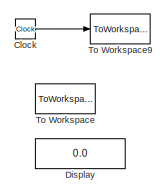
[diagram: root canvas - part 1/4, top right region]
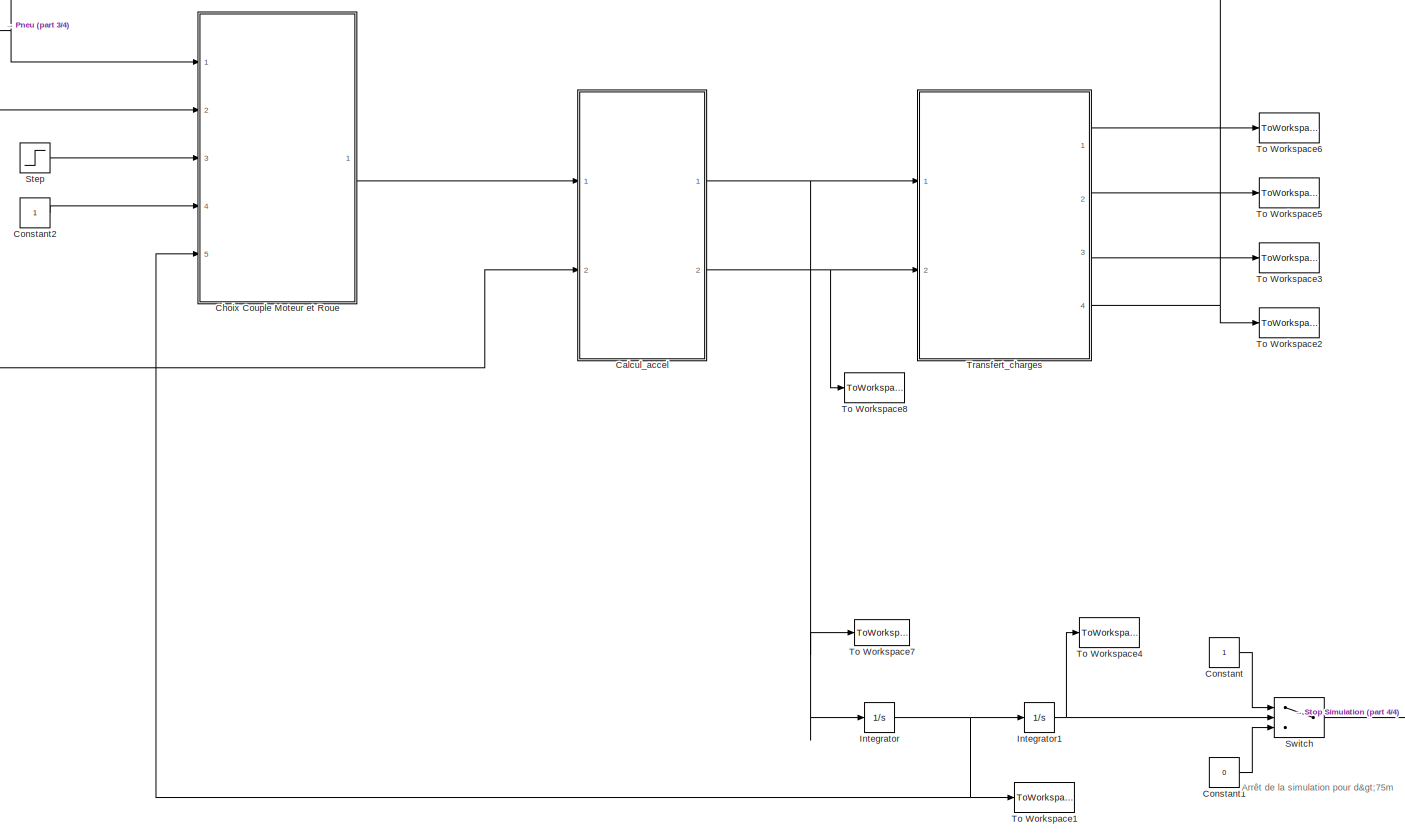
[diagram: root canvas - part 2/4, center side, full height]
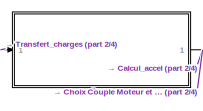
[diagram: root canvas - part 3/4, middle left region]
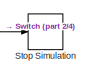
[diagram: root canvas - part 4/4, bottom right region]
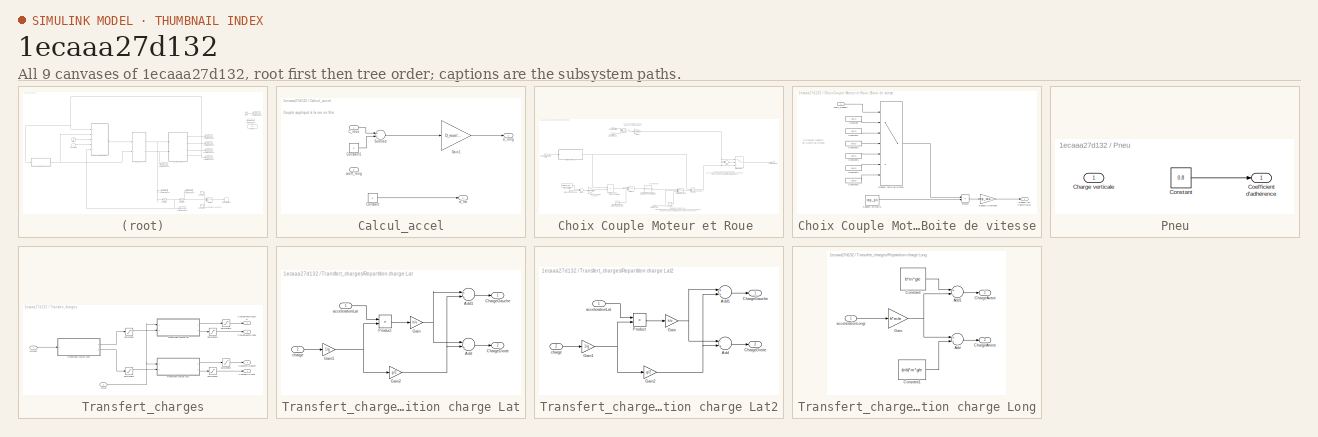
[diagram: thumbnail index - all 9 canvases of the model, root first then tree order]
MODEL slx_1ecaaa27d132
KIND model
CONFIG AbsTol = auto
CONFIG FixedStep = auto
CONFIG MaxStep = auto
CONFIG MinStep = auto
CONFIG RelTol = 1e-3
CONFIG SampleTimeConstraint = Unconstrained
CONFIG Solver = VariableStepAuto
CONFIG SolverMode = Auto
CONFIG SolverName = VariableStepAuto
CONFIG StartTime = 0.0
CONFIG StopTime = 5
BLOCK [SubSystem] Calcul_accel
  Ports = [2, 2]
  RequestExecContextInheritance = off
  Variant = off
BLOCK [Inport] Calcul_accel/C_roue
  IconDisplay = Port number
BLOCK [Constant] Calcul_accel/Constant
  Value = 0
BLOCK [Constant] Calcul_accel/Constant1
  Value = 0
BLOCK [Gain] Calcul_accel/Gain1
  Gain = D_roue/(J_eq*2)
  OutDataTypeStr = Inherit: Inherit via internal rule
  ParamDataTypeStr = Inherit: Inherit via internal rule
  SaturateOnIntegerOverflow = off
BLOCK [Sum] Calcul_accel/Subtract
  InputSameDT = off
  Inputs = +-
  OutDataTypeStr = Inherit: Inherit via internal rule
  Ports = [2, 1]
  SaturateOnIntegerOverflow = off
BLOCK [Outport] Calcul_accel/a_lat
  IconDisplay = Port number
  Port = 2
BLOCK [Outport] Calcul_accel/a_long
  IconDisplay = Port number
BLOCK [Inport] Calcul_accel/coeff_long
  IconDisplay = Port number
  Port = 2
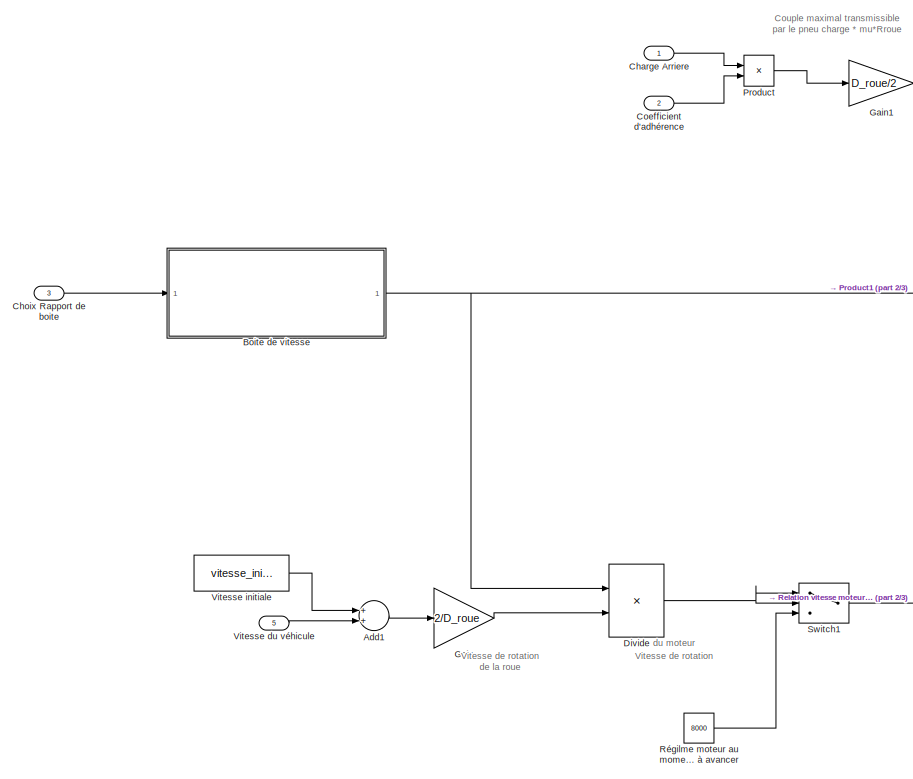
[diagram: Choix Couple Moteur et Roue  - part 1/3, left side, full height]
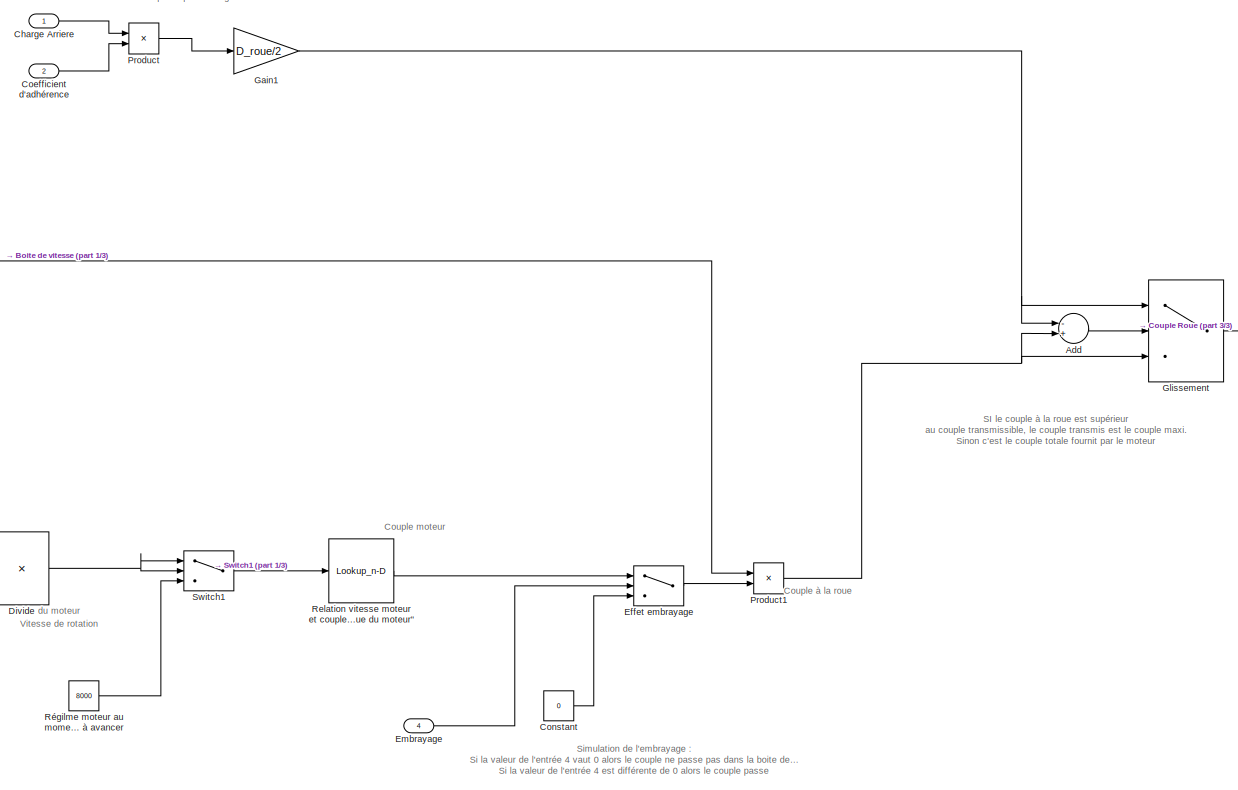
[diagram: Choix Couple Moteur et Roue  - part 2/3, center side, full height]
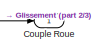
[diagram: Choix Couple Moteur et Roue  - part 3/3, middle right region]
BLOCK [SubSystem] Choix Couple Moteur et Roue 
  Ports = [5, 1]
  RequestExecContextInheritance = off
  Variant = off
BLOCK [Sum] Choix Couple Moteur et Roue /Add
  InputSameDT = off
  Inputs = -+
  OutDataTypeStr = Inherit: Inherit via internal rule
  Ports = [2, 1]
  SaturateOnIntegerOverflow = off
BLOCK [Sum] Choix Couple Moteur et Roue /Add1
  InputSameDT = off
  OutDataTypeStr = Inherit: Inherit via internal rule
  Ports = [2, 1]
  SaturateOnIntegerOverflow = off
BLOCK [SubSystem] Choix Couple Moteur et Roue /Boite de vitesse
  Ports = [1, 1]
  RequestExecContextInheritance = off
  Variant = off
BLOCK [Constant] Choix Couple Moteur et Roue /Boite de vitesse/Constant
  Value = rap(1)
BLOCK [Constant] Choix Couple Moteur et Roue /Boite de vitesse/Constant1
  Value = rap(2)
BLOCK [Constant] Choix Couple Moteur et Roue /Boite de vitesse/Constant2
  Value = rap(3)
BLOCK [Constant] Choix Couple Moteur et Roue /Boite de vitesse/Constant3
  Value = rap(4)
BLOCK [Constant] Choix Couple Moteur et Roue /Boite de vitesse/Constant4
  Value = rap(5)
BLOCK [Constant] Choix Couple Moteur et Roue /Boite de vitesse/Constant5
  Value = rap(6)
BLOCK [Product] Choix Couple Moteur et Roue /Boite de vitesse/Product
  InputSameDT = off
  OutDataTypeStr = Inherit: Inherit via internal rule
  Ports = [2, 1]
  RndMeth = Floor
  SaturateOnIntegerOverflow = off
BLOCK [MultiPortSwitch] Choix Couple Moteur et Roue /Boite de vitesse/Rapport boite de vitesse
  InputSameDT = off
  Inputs = 6
  Ports = [7, 1]
  SaturateOnIntegerOverflow = off
BLOCK [Outport] Choix Couple Moteur et Roue /Boite de vitesse/Rapport de transmission
  IconDisplay = Port number
BLOCK [Constant] Choix Couple Moteur et Roue /Boite de vitesse/Rapport primaire
  Value = rap_pri
BLOCK [Gain] Choix Couple Moteur et Roue /Boite de vitesse/Rapport_Couronne
  Gain = rap_couronne
  OutDataTypeStr = Inherit: Inherit via internal rule
  ParamDataTypeStr = Inherit: Inherit via internal rule
  SaturateOnIntegerOverflow = off
BLOCK [Inport] Choix Couple Moteur et Roue /Boite de vitesse/choix_Rapport
  IconDisplay = Port number
BLOCK [Inport] Choix Couple Moteur et Roue /Charge Arriere
  IconDisplay = Port number
BLOCK [Inport] Choix Couple Moteur et Roue /Choix Rapport de boite 
  IconDisplay = Port number
  Port = 3
BLOCK [Inport] Choix Couple Moteur et Roue /Coefficient d'adhérence 
  IconDisplay = Port number
  Port = 2
BLOCK [Constant] Choix Couple Moteur et Roue /Constant
  Value = 0
BLOCK [Outport] Choix Couple Moteur et Roue /Couple Roue
  IconDisplay = Port number
BLOCK [Product] Choix Couple Moteur et Roue /Divide
  InputSameDT = off
  Inputs = /*
  OutDataTypeStr = Inherit: Inherit via internal rule
  Ports = [2, 1]
  RndMeth = Floor
  SaturateOnIntegerOverflow = off
BLOCK [Switch] Choix Couple Moteur et Roue /Effet embrayage
  Criteria = u2 > Threshold
  InputSameDT = off
  SaturateOnIntegerOverflow = off
BLOCK [Inport] Choix Couple Moteur et Roue /Embrayage
  IconDisplay = Port number
  Port = 4
BLOCK [Gain] Choix Couple Moteur et Roue /Gain
  Gain = 2/D_roue
  OutDataTypeStr = Inherit: Inherit via internal rule
  ParamDataTypeStr = Inherit: Inherit via internal rule
  SaturateOnIntegerOverflow = off
BLOCK [Gain] Choix Couple Moteur et Roue /Gain1
  Gain = D_roue/2
  OutDataTypeStr = Inherit: Inherit via internal rule
  ParamDataTypeStr = Inherit: Inherit via internal rule
  SaturateOnIntegerOverflow = off
BLOCK [Switch] Choix Couple Moteur et Roue /Glissement
  Criteria = u2 > Threshold
  InputSameDT = off
  SaturateOnIntegerOverflow = off
BLOCK [Product] Choix Couple Moteur et Roue /Product
  InputSameDT = off
  OutDataTypeStr = Inherit: Inherit via internal rule
  Ports = [2, 1]
  RndMeth = Floor
  SaturateOnIntegerOverflow = off
BLOCK [Product] Choix Couple Moteur et Roue /Product1
  InputSameDT = off
  OutDataTypeStr = Inherit: Inherit via internal rule
  Ports = [2, 1]
  RndMeth = Floor
  SaturateOnIntegerOverflow = off
BLOCK [Lookup_n-D] Choix Couple Moteur et Roue /Relation vitesse moteur et couple moteur "Caractéristique du moteur"
  BreakpointsForDimension1 = [0,4500,5000,5500,6000,6500,7000,7500,8000,8500,9000,9500,10000,10500,11000,11500,12000,12500,13000,13500]
  InternalRulePriority = Speed
  NumberOfTableDimensions = 1
  Ports = [1, 1]
  RndMeth = Simplest
  Table = [0,45.126,51.01200000000001,52.974000000000004,51.01200000000001,48.069,49.050000000000004,51.01200000000001,56.898,58.86,58.86,57.879000000000005,56.898,54.936,51.993,48.069,44.145,40.221,36.297000000000004,32.373]
BLOCK [Constant] Choix Couple Moteur et Roue /Régilme moteur au moment où le véhicule commence à avancer
  Value = 8000
BLOCK [Switch] Choix Couple Moteur et Roue /Switch1
  Criteria = u2 > Threshold
  InputSameDT = off
  SaturateOnIntegerOverflow = off
BLOCK [Inport] Choix Couple Moteur et Roue /Vitesse du véhicule
  IconDisplay = Port number
  Port = 5
BLOCK [Constant] Choix Couple Moteur et Roue /Vitesse initiale
  Value = vitesse_initiale
BLOCK [Clock] Clock
BLOCK [Constant] Constant
BLOCK [Constant] Constant1
  Value = 0
BLOCK [Constant] Constant2
BLOCK [Display] Display
  Decimation = 1
  Ports = [1]
BLOCK [Integrator] Integrator
  Ports = [1, 1]
BLOCK [Integrator] Integrator1
  Ports = [1, 1]
BLOCK [SubSystem] Pneu
  Ports = [1, 1]
  RequestExecContextInheritance = off
  Variant = off
BLOCK [Inport] Pneu/Charge verticale
  IconDisplay = Port number
BLOCK [Outport] Pneu/Coefficient d'adhérence
  IconDisplay = Port number
BLOCK [Constant] Pneu/Constant
  Value = 0.8
BLOCK [Step] Step
  SampleTime = 0
  Time = 0
BLOCK [Stop] Stop Simulation
BLOCK [Switch] Switch
  Criteria = u2 > Threshold
  InputSameDT = off
  SaturateOnIntegerOverflow = off
  Threshold = 75
BLOCK [ToWorkspace] To Workspace
  FixptAsFi = on
  MaxDataPoints = inf
  Ports = [1]
  SampleTime = -1
  Save2DSignal = 3-D array (concatenate along third dimension)
  SaveFormat = Timeseries
  VariableName = simout
BLOCK [ToWorkspace] To Workspace1
  FixptAsFi = on
  MaxDataPoints = inf
  Ports = [1]
  SampleTime = -1
  Save2DSignal = 3-D array (concatenate along third dimension)
  SaveFormat = Timeseries
  VariableName = Vitesse
BLOCK [ToWorkspace] To Workspace2
  FixptAsFi = on
  MaxDataPoints = inf
  Ports = [1]
  SampleTime = -1
  Save2DSignal = 3-D array (concatenate along third dimension)
  SaveFormat = Timeseries
  VariableName = ChargeArrDroit
BLOCK [ToWorkspace] To Workspace3
  FixptAsFi = on
  MaxDataPoints = inf
  Ports = [1]
  SampleTime = -1
  Save2DSignal = 3-D array (concatenate along third dimension)
  SaveFormat = Timeseries
  VariableName = ChargeArrGauche
BLOCK [ToWorkspace] To Workspace4
  FixptAsFi = on
  MaxDataPoints = inf
  Ports = [1]
  SampleTime = -1
  Save2DSignal = 3-D array (concatenate along third dimension)
  SaveFormat = Timeseries
  VariableName = Distance
BLOCK [ToWorkspace] To Workspace5
  FixptAsFi = on
  MaxDataPoints = inf
  Ports = [1]
  SampleTime = -1
  Save2DSignal = 3-D array (concatenate along third dimension)
  SaveFormat = Timeseries
  VariableName = ChargeAvantDroit
BLOCK [ToWorkspace] To Workspace6
  FixptAsFi = on
  MaxDataPoints = inf
  Ports = [1]
  SampleTime = -1
  Save2DSignal = 3-D array (concatenate along third dimension)
  SaveFormat = Timeseries
  VariableName = ChargeAvantGauche
BLOCK [ToWorkspace] To Workspace7
  FixptAsFi = on
  MaxDataPoints = inf
  Ports = [1]
  SampleTime = -1
  Save2DSignal = 3-D array (concatenate along third dimension)
  SaveFormat = Timeseries
  VariableName = AccLong
BLOCK [ToWorkspace] To Workspace8
  FixptAsFi = on
  MaxDataPoints = inf
  Ports = [1]
  SampleTime = -1
  Save2DSignal = 3-D array (concatenate along third dimension)
  SaveFormat = Timeseries
  VariableName = AccLat
BLOCK [ToWorkspace] To Workspace9
  FixptAsFi = on
  MaxDataPoints = inf
  Ports = [1]
  SampleTime = -1
  Save2DSignal = 3-D array (concatenate along third dimension)
  VariableName = time
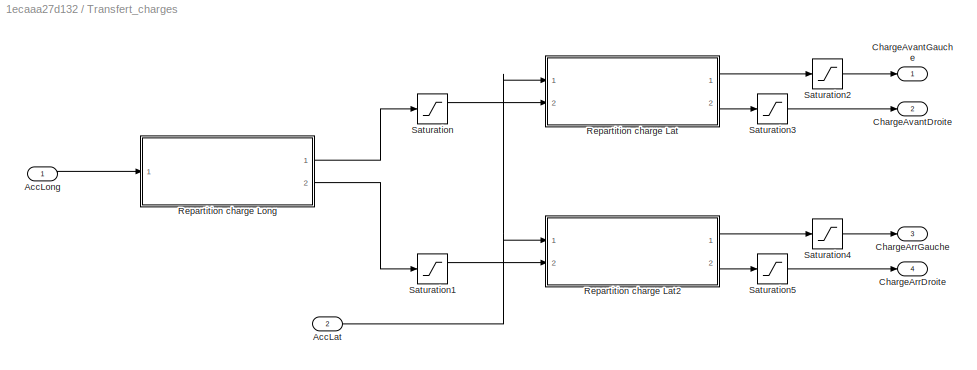
BLOCK [SubSystem] Transfert_charges
  Ports = [2, 4]
  RequestExecContextInheritance = off
  Variant = off
BLOCK [Inport] Transfert_charges/AccLat
  IconDisplay = Port number
  Port = 2
BLOCK [Inport] Transfert_charges/AccLong
  IconDisplay = Port number
BLOCK [Outport] Transfert_charges/ChargeArrDroite
  IconDisplay = Port number
  Port = 4
BLOCK [Outport] Transfert_charges/ChargeArrGauche
  IconDisplay = Port number
  Port = 3
BLOCK [Outport] Transfert_charges/ChargeAvantDroite
  IconDisplay = Port number
  Port = 2
BLOCK [Outport] Transfert_charges/ChargeAvantGauche
  IconDisplay = Port number
BLOCK [SubSystem] Transfert_charges/Repartition charge Lat
  Ports = [2, 2]
  RequestExecContextInheritance = off
  Variant = off
BLOCK [Sum] Transfert_charges/Repartition charge Lat/Add
  InputSameDT = off
  Inputs = -+
  OutDataTypeStr = Inherit: Inherit via internal rule
  Ports = [2, 1]
  SaturateOnIntegerOverflow = off
BLOCK [Sum] Transfert_charges/Repartition charge Lat/Add1
  InputSameDT = off
  OutDataTypeStr = Inherit: Inherit via internal rule
  Ports = [2, 1]
  SaturateOnIntegerOverflow = off
BLOCK [Outport] Transfert_charges/Repartition charge Lat/ChargeDroite
  IconDisplay = Port number
  Port = 2
BLOCK [Outport] Transfert_charges/Repartition charge Lat/ChargeGauche
  IconDisplay = Port number
BLOCK [Gain] Transfert_charges/Repartition charge Lat/Gain
  Gain = h/v
  OutDataTypeStr = Inherit: Inherit via internal rule
  ParamDataTypeStr = Inherit: Inherit via internal rule
  SaturateOnIntegerOverflow = off
BLOCK [Gain] Transfert_charges/Repartition charge Lat/Gain1
  Gain = 1/g
  OutDataTypeStr = Inherit: Inherit via internal rule
  ParamDataTypeStr = Inherit: Inherit via internal rule
  SaturateOnIntegerOverflow = off
BLOCK [Gain] Transfert_charges/Repartition charge Lat/Gain2
  Gain = g/2
  OutDataTypeStr = Inherit: Inherit via internal rule
  ParamDataTypeStr = Inherit: Inherit via internal rule
  SaturateOnIntegerOverflow = off
BLOCK [Product] Transfert_charges/Repartition charge Lat/Product
  InputSameDT = off
  OutDataTypeStr = Inherit: Inherit via internal rule
  Ports = [2, 1]
  RndMeth = Floor
  SaturateOnIntegerOverflow = off
BLOCK [Inport] Transfert_charges/Repartition charge Lat/accelerationLat
  IconDisplay = Port number
BLOCK [Inport] Transfert_charges/Repartition charge Lat/charge 
  IconDisplay = Port number
  Port = 2
BLOCK [SubSystem] Transfert_charges/Repartition charge Lat2
  Ports = [2, 2]
  RequestExecContextInheritance = off
  Variant = off
BLOCK [Sum] Transfert_charges/Repartition charge Lat2/Add
  InputSameDT = off
  Inputs = -+
  OutDataTypeStr = Inherit: Inherit via internal rule
  Ports = [2, 1]
  SaturateOnIntegerOverflow = off
BLOCK [Sum] Transfert_charges/Repartition charge Lat2/Add1
  InputSameDT = off
  OutDataTypeStr = Inherit: Inherit via internal rule
  Ports = [2, 1]
  SaturateOnIntegerOverflow = off
BLOCK [Outport] Transfert_charges/Repartition charge Lat2/ChargeDroite
  IconDisplay = Port number
  Port = 2
BLOCK [Outport] Transfert_charges/Repartition charge Lat2/ChargeGauche
  IconDisplay = Port number
BLOCK [Gain] Transfert_charges/Repartition charge Lat2/Gain
  Gain = h/v
  OutDataTypeStr = Inherit: Inherit via internal rule
  ParamDataTypeStr = Inherit: Inherit via internal rule
  SaturateOnIntegerOverflow = off
BLOCK [Gain] Transfert_charges/Repartition charge Lat2/Gain1
  Gain = 1/g
  OutDataTypeStr = Inherit: Inherit via internal rule
  ParamDataTypeStr = Inherit: Inherit via internal rule
  SaturateOnIntegerOverflow = off
BLOCK [Gain] Transfert_charges/Repartition charge Lat2/Gain2
  Gain = g/2
  OutDataTypeStr = Inherit: Inherit via internal rule
  ParamDataTypeStr = Inherit: Inherit via internal rule
  SaturateOnIntegerOverflow = off
BLOCK [Product] Transfert_charges/Repartition charge Lat2/Product
  InputSameDT = off
  OutDataTypeStr = Inherit: Inherit via internal rule
  Ports = [2, 1]
  RndMeth = Floor
  SaturateOnIntegerOverflow = off
BLOCK [Inport] Transfert_charges/Repartition charge Lat2/accelerationLat
  IconDisplay = Port number
BLOCK [Inport] Transfert_charges/Repartition charge Lat2/charge 
  IconDisplay = Port number
  Port = 2
BLOCK [SubSystem] Transfert_charges/Repartition charge Long
  Ports = [1, 2]
  RequestExecContextInheritance = off
  Variant = off
BLOCK [Sum] Transfert_charges/Repartition charge Long/Add
  InputSameDT = off
  OutDataTypeStr = Inherit: Inherit via internal rule
  Ports = [2, 1]
  SaturateOnIntegerOverflow = off
BLOCK [Sum] Transfert_charges/Repartition charge Long/Add1
  InputSameDT = off
  Inputs = +-
  OutDataTypeStr = Inherit: Inherit via internal rule
  Ports = [2, 1]
  SaturateOnIntegerOverflow = off
BLOCK [Outport] Transfert_charges/Repartition charge Long/ChargeArriere
  IconDisplay = Port number
  Port = 2
BLOCK [Outport] Transfert_charges/Repartition charge Long/ChargeAvant
  IconDisplay = Port number
BLOCK [Constant] Transfert_charges/Repartition charge Long/Constant
  Value = b*m*g/e
BLOCK [Constant] Transfert_charges/Repartition charge Long/Constant1
  Value = (e-b)*m*g/e
BLOCK [Gain] Transfert_charges/Repartition charge Long/Gain
  Gain = h*m/e
  OutDataTypeStr = Inherit: Inherit via internal rule
  ParamDataTypeStr = Inherit: Inherit via internal rule
  SaturateOnIntegerOverflow = off
BLOCK [Inport] Transfert_charges/Repartition charge Long/accelerationLongi
  IconDisplay = Port number
BLOCK [Saturate] Transfert_charges/Saturation
  InputPortMap = u0
  LowerLimit = 0
  Ports = [1, 1]
  UpperLimit = inf
BLOCK [Saturate] Transfert_charges/Saturation1
  InputPortMap = u0
  LowerLimit = 0
  Ports = [1, 1]
  UpperLimit = m*g
BLOCK [Saturate] Transfert_charges/Saturation2
  InputPortMap = u0
  LowerLimit = 0
  Ports = [1, 1]
  UpperLimit = m*g
BLOCK [Saturate] Transfert_charges/Saturation3
  InputPortMap = u0
  LowerLimit = 0
  Ports = [1, 1]
  UpperLimit = m*g
BLOCK [Saturate] Transfert_charges/Saturation4
  InputPortMap = u0
  LowerLimit = 0
  Ports = [1, 1]
  UpperLimit = m*g
BLOCK [Saturate] Transfert_charges/Saturation5
  InputPortMap = u0
  LowerLimit = 0
  Ports = [1, 1]
  UpperLimit = m*g
ANNOTATION (root): Arrêt de la simulation pour d>75m
ANNOTATION Calcul_accel: Couple appliqué à la rue en N.m
ANNOTATION Choix Couple Moteur et Roue : Couple maximal transmissible par le pneu charge * mu*Rroue
ANNOTATION Choix Couple Moteur et Roue : Couple moteur
ANNOTATION Choix Couple Moteur et Roue : Couple à la roue
ANNOTATION Choix Couple Moteur et Roue : SI le couple à la roue est supérieur au couple transmissible, le couple transmis est le couple maxi. Sinon c'est le couple totale fournit par le moteur
ANNOTATION Choix Couple Moteur et Roue : Simulation de l'embrayage : Si la valeur de l'entrée 4 vaut 0 alors le couple ne passe pas dans la boite de vitesse Si la valeur de l'entrée 4 est différente de 0 alors le couple passe
ANNOTATION Choix Couple Moteur et Roue : Vitesse de rotation de la roue
ANNOTATION Choix Couple Moteur et Roue : Vitesse de rotation du moteur
ANNOTATION Choix Couple Moteur et Roue /Boite de vitesse: Différents rapports de la boite de vitesse
LINE Calcul_accel/C_roue:1 -> Calcul_accel/Subtract:1
LINE Calcul_accel/Constant1:1 -> Calcul_accel/Subtract:2
LINE Calcul_accel/Constant:1 -> Calcul_accel/a_lat:1
LINE Calcul_accel/Gain1:1 -> Calcul_accel/a_long:1
LINE Calcul_accel/Subtract:1 -> Calcul_accel/Gain1:1
NET Calcul_accel:1 -> Integrator:1, To Workspace7:1, Transfert_charges:1
NET Calcul_accel:2 -> To Workspace8:1, Transfert_charges:2
LINE Choix Couple Moteur et Roue /Add1:1 -> Choix Couple Moteur et Roue /Gain:1
LINE Choix Couple Moteur et Roue /Add:1 -> Choix Couple Moteur et Roue /Glissement:2
LINE Choix Couple Moteur et Roue /Boite de vitesse/Constant1:1 -> Choix Couple Moteur et Roue /Boite de vitesse/Rapport boite de vitesse:3
LINE Choix Couple Moteur et Roue /Boite de vitesse/Constant2:1 -> Choix Couple Moteur et Roue /Boite de vitesse/Rapport boite de vitesse:4
LINE Choix Couple Moteur et Roue /Boite de vitesse/Constant3:1 -> Choix Couple Moteur et Roue /Boite de vitesse/Rapport boite de vitesse:5
LINE Choix Couple Moteur et Roue /Boite de vitesse/Constant4:1 -> Choix Couple Moteur et Roue /Boite de vitesse/Rapport boite de vitesse:6
LINE Choix Couple Moteur et Roue /Boite de vitesse/Constant5:1 -> Choix Couple Moteur et Roue /Boite de vitesse/Rapport boite de vitesse:7
LINE Choix Couple Moteur et Roue /Boite de vitesse/Constant:1 -> Choix Couple Moteur et Roue /Boite de vitesse/Rapport boite de vitesse:2
LINE Choix Couple Moteur et Roue /Boite de vitesse/Product:1 -> Choix Couple Moteur et Roue /Boite de vitesse/Rapport_Couronne:1
LINE Choix Couple Moteur et Roue /Boite de vitesse/Rapport boite de vitesse:1 -> Choix Couple Moteur et Roue /Boite de vitesse/Product:1
LINE Choix Couple Moteur et Roue /Boite de vitesse/Rapport primaire:1 -> Choix Couple Moteur et Roue /Boite de vitesse/Product:2
LINE Choix Couple Moteur et Roue /Boite de vitesse/Rapport_Couronne:1 -> Choix Couple Moteur et Roue /Boite de vitesse/Rapport de transmission:1
LINE Choix Couple Moteur et Roue /Boite de vitesse/choix_Rapport:1 -> Choix Couple Moteur et Roue /Boite de vitesse/Rapport boite de vitesse:1
NET Choix Couple Moteur et Roue /Boite de vitesse:1 -> Choix Couple Moteur et Roue /Divide:1, Choix Couple Moteur et Roue /Product1:1
LINE Choix Couple Moteur et Roue /Charge Arriere:1 -> Choix Couple Moteur et Roue /Product:1
LINE Choix Couple Moteur et Roue /Choix Rapport de boite :1 -> Choix Couple Moteur et Roue /Boite de vitesse:1
LINE Choix Couple Moteur et Roue /Coefficient d'adhérence :1 -> Choix Couple Moteur et Roue /Product:2
LINE Choix Couple Moteur et Roue /Constant:1 -> Choix Couple Moteur et Roue /Effet embrayage:3
NET Choix Couple Moteur et Roue /Divide:1 -> Choix Couple Moteur et Roue /Switch1:1, Choix Couple Moteur et Roue /Switch1:2
LINE Choix Couple Moteur et Roue /Effet embrayage:1 -> Choix Couple Moteur et Roue /Product1:2
LINE Choix Couple Moteur et Roue /Embrayage:1 -> Choix Couple Moteur et Roue /Effet embrayage:2
NET Choix Couple Moteur et Roue /Gain1:1 -> Choix Couple Moteur et Roue /Add:1, Choix Couple Moteur et Roue /Glissement:1
LINE Choix Couple Moteur et Roue /Gain:1 -> Choix Couple Moteur et Roue /Divide:2
LINE Choix Couple Moteur et Roue /Glissement:1 -> Choix Couple Moteur et Roue /Couple Roue:1
NET Choix Couple Moteur et Roue /Product1:1 -> Choix Couple Moteur et Roue /Add:2, Choix Couple Moteur et Roue /Glissement:3
LINE Choix Couple Moteur et Roue /Product:1 -> Choix Couple Moteur et Roue /Gain1:1
LINE Choix Couple Moteur et Roue /Relation vitesse moteur et couple moteur "Caractéristique du moteur":1 -> Choix Couple Moteur et Roue /Effet embrayage:1
LINE Choix Couple Moteur et Roue /Régilme moteur au moment où le véhicule commence à avancer:1 -> Choix Couple Moteur et Roue /Switch1:3
LINE Choix Couple Moteur et Roue /Switch1:1 -> Choix Couple Moteur et Roue /Relation vitesse moteur et couple moteur "Caractéristique du moteur":1
LINE Choix Couple Moteur et Roue /Vitesse du véhicule:1 -> Choix Couple Moteur et Roue /Add1:2
LINE Choix Couple Moteur et Roue /Vitesse initiale:1 -> Choix Couple Moteur et Roue /Add1:1
LINE Choix Couple Moteur et Roue :1 -> Calcul_accel:1
LINE Clock:1 -> To Workspace9:1
LINE Constant1:1 -> Switch:3
LINE Constant2:1 -> Choix Couple Moteur et Roue :4
LINE Constant:1 -> Switch:1
NET Integrator1:1 -> Switch:2, To Workspace4:1
NET Integrator:1 -> Choix Couple Moteur et Roue :5, Integrator1:1, To Workspace1:1
LINE Pneu/Constant:1 -> Pneu/Coefficient d'adhérence:1
NET Pneu:1 -> Calcul_accel:2, Choix Couple Moteur et Roue :2
LINE Step:1 -> Choix Couple Moteur et Roue :3
LINE Switch:1 -> Stop Simulation:1
NET Transfert_charges/AccLat:1 -> Transfert_charges/Repartition charge Lat2:1, Transfert_charges/Repartition charge Lat:1
LINE Transfert_charges/AccLong:1 -> Transfert_charges/Repartition charge Long:1
LINE Transfert_charges/Repartition charge Lat/Add1:1 -> Transfert_charges/Repartition charge Lat/ChargeGauche:1
LINE Transfert_charges/Repartition charge Lat/Add:1 -> Transfert_charges/Repartition charge Lat/ChargeDroite:1
NET Transfert_charges/Repartition charge Lat/Gain1:1 -> Transfert_charges/Repartition charge Lat/Gain2:1, Transfert_charges/Repartition charge Lat/Product:2
NET Transfert_charges/Repartition charge Lat/Gain2:1 -> Transfert_charges/Repartition charge Lat/Add1:2, Transfert_charges/Repartition charge Lat/Add:2
NET Transfert_charges/Repartition charge Lat/Gain:1 -> Transfert_charges/Repartition charge Lat/Add1:1, Transfert_charges/Repartition charge Lat/Add:1
LINE Transfert_charges/Repartition charge Lat/Product:1 -> Transfert_charges/Repartition charge Lat/Gain:1
LINE Transfert_charges/Repartition charge Lat/accelerationLat:1 -> Transfert_charges/Repartition charge Lat/Product:1
LINE Transfert_charges/Repartition charge Lat/charge :1 -> Transfert_charges/Repartition charge Lat/Gain1:1
LINE Transfert_charges/Repartition charge Lat2/Add1:1 -> Transfert_charges/Repartition charge Lat2/ChargeGauche:1
LINE Transfert_charges/Repartition charge Lat2/Add:1 -> Transfert_charges/Repartition charge Lat2/ChargeDroite:1
NET Transfert_charges/Repartition charge Lat2/Gain1:1 -> Transfert_charges/Repartition charge Lat2/Gain2:1, Transfert_charges/Repartition charge Lat2/Product:2
NET Transfert_charges/Repartition charge Lat2/Gain2:1 -> Transfert_charges/Repartition charge Lat2/Add1:2, Transfert_charges/Repartition charge Lat2/Add:2
NET Transfert_charges/Repartition charge Lat2/Gain:1 -> Transfert_charges/Repartition charge Lat2/Add1:1, Transfert_charges/Repartition charge Lat2/Add:1
LINE Transfert_charges/Repartition charge Lat2/Product:1 -> Transfert_charges/Repartition charge Lat2/Gain:1
LINE Transfert_charges/Repartition charge Lat2/accelerationLat:1 -> Transfert_charges/Repartition charge Lat2/Product:1
LINE Transfert_charges/Repartition charge Lat2/charge :1 -> Transfert_charges/Repartition charge Lat2/Gain1:1
LINE Transfert_charges/Repartition charge Lat2:1 -> Transfert_charges/Saturation4:1
LINE Transfert_charges/Repartition charge Lat2:2 -> Transfert_charges/Saturation5:1
LINE Transfert_charges/Repartition charge Lat:1 -> Transfert_charges/Saturation2:1
LINE Transfert_charges/Repartition charge Lat:2 -> Transfert_charges/Saturation3:1
LINE Transfert_charges/Repartition charge Long/Add1:1 -> Transfert_charges/Repartition charge Long/ChargeAvant:1
LINE Transfert_charges/Repartition charge Long/Add:1 -> Transfert_charges/Repartition charge Long/ChargeArriere:1
LINE Transfert_charges/Repartition charge Long/Constant1:1 -> Transfert_charges/Repartition charge Long/Add:2
LINE Transfert_charges/Repartition charge Long/Constant:1 -> Transfert_charges/Repartition charge Long/Add1:1
NET Transfert_charges/Repartition charge Long/Gain:1 -> Transfert_charges/Repartition charge Long/Add1:2, Transfert_charges/Repartition charge Long/Add:1
LINE Transfert_charges/Repartition charge Long/accelerationLongi:1 -> Transfert_charges/Repartition charge Long/Gain:1
LINE Transfert_charges/Repartition charge Long:1 -> Transfert_charges/Saturation:1
LINE Transfert_charges/Repartition charge Long:2 -> Transfert_charges/Saturation1:1
LINE Transfert_charges/Saturation1:1 -> Transfert_charges/Repartition charge Lat2:2
LINE Transfert_charges/Saturation2:1 -> Transfert_charges/ChargeAvantGauche:1
LINE Transfert_charges/Saturation3:1 -> Transfert_charges/ChargeAvantDroite:1
LINE Transfert_charges/Saturation4:1 -> Transfert_charges/ChargeArrGauche:1
LINE Transfert_charges/Saturation5:1 -> Transfert_charges/ChargeArrDroite:1
LINE Transfert_charges/Saturation:1 -> Transfert_charges/Repartition charge Lat:2
LINE Transfert_charges:1 -> To Workspace6:1
LINE Transfert_charges:2 -> To Workspace5:1
LINE Transfert_charges:3 -> To Workspace3:1
NET Transfert_charges:4 -> Choix Couple Moteur et Roue :1, Pneu:1, To Workspace2:1
note: NET lines group one-source signal fan-out (src -> all destinations, sorted); 1:1 wires keep LINE
